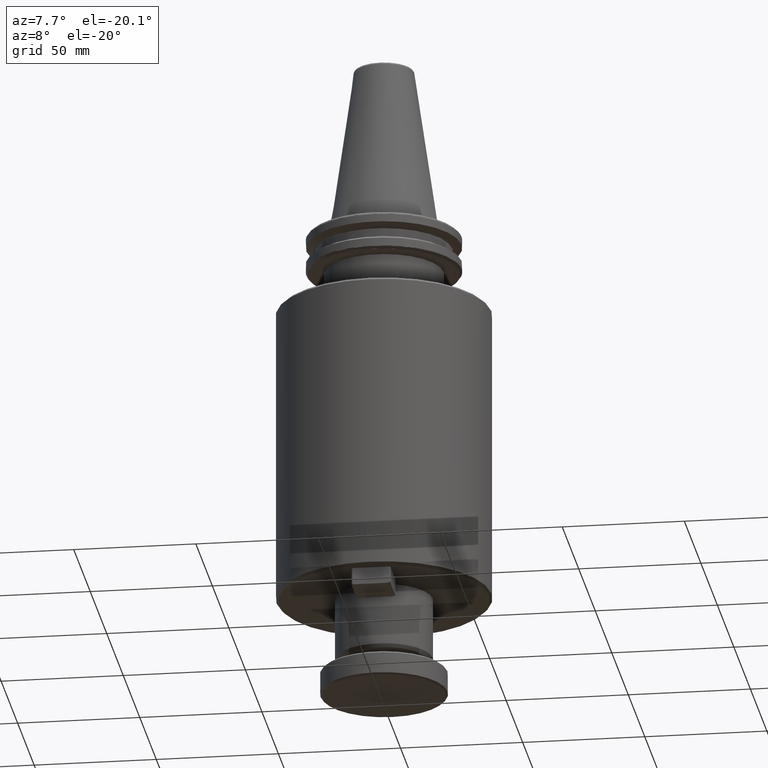
[diagram: clean part render]
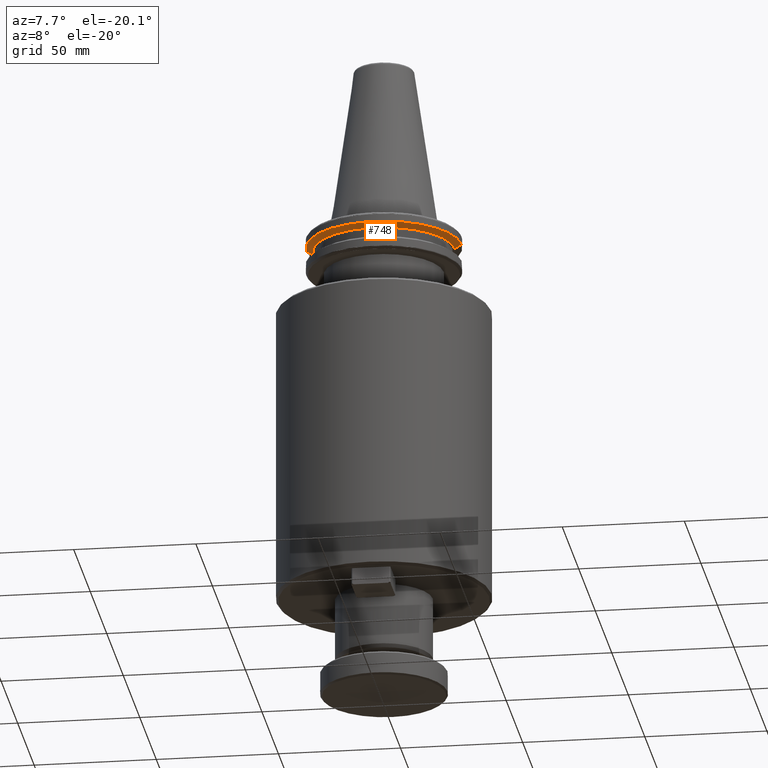
[diagram: same view with one face highlighted and labeled with its STEP entity id]
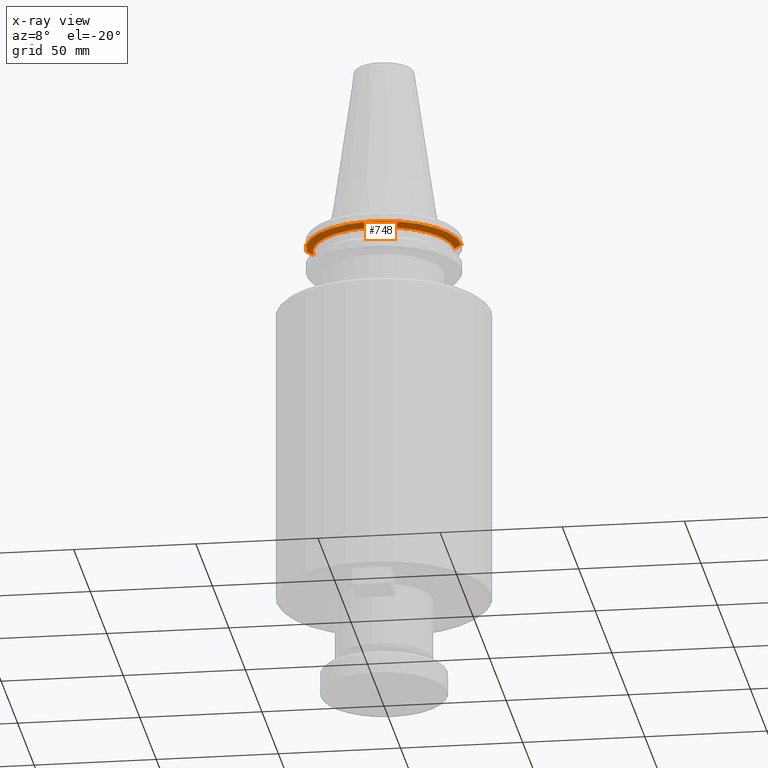
[diagram: x-ray of the same camera — body ghosted, the highlighted face saturated]
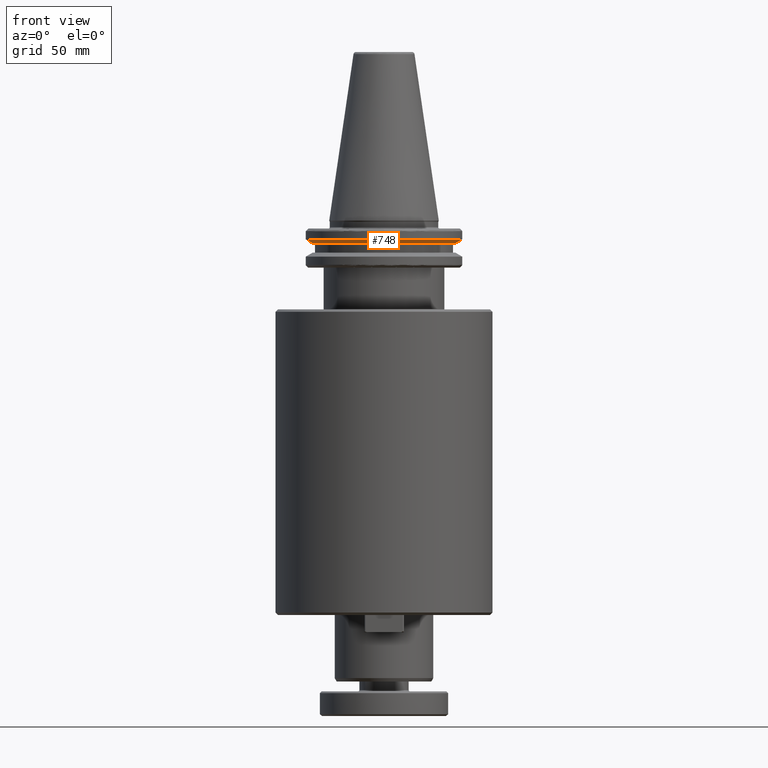
[diagram: same view with one face highlighted and labeled with its STEP entity id]
A machine part, auxiliary view. The second image highlights one B-rep face of the part: STEP entity #748.
The next image is the same camera in x-ray: the body ghosted, the highlighted face saturated — about 0% of this face is hidden behind the body in this view.
A second angle (front view) of the same face is appended — the face is thin or edge-on in the first view.
In plain terms, the highlighted conical surface has half-angle 60 deg.
Its self-contained STEP definition (entity closure, byte-faithful):
#137 = AXIS2_PLACEMENT_3D ( 'NONE', #929, #3248, #1270 ) ;
#172 = EDGE_LOOP ( 'NONE', ( #524, #1441, #634, #3550 ) ) ;
#295 = CARTESIAN_POINT ( 'NONE',  ( -31.75000000000000000, 3.888253587292846500E-015, -7.578163357943284800 ) ) ;
#390 = DIRECTION ( 'NONE',  ( 1.000000000000000000, 0.0000000000000000000, -5.463695987328526400E-017 ) ) ;
#399 = DIRECTION ( 'NONE',  ( -0.0000000000000000000, -0.0000000000000000000, -1.000000000000000000 ) ) ;
#401 = CARTESIAN_POINT ( 'NONE',  ( 0.0000000000000000000, 0.0000000000000000000, -7.578163357943284800 ) ) ;
#455 = CARTESIAN_POINT ( 'NONE',  ( -28.94089653438086500, 3.716245608910637900E-015, -9.199999999999999300 ) ) ;
#524 = ORIENTED_EDGE ( 'NONE', *, *, #839, .F. ) ;
#634 = ORIENTED_EDGE ( 'NONE', *, *, #733, .T. ) ;
#683 = VERTEX_POINT ( 'NONE', #3795 ) ;
#733 = EDGE_CURVE ( 'NONE', #683, #3641, #2505, .T. ) ;
#748 = ADVANCED_FACE ( 'NONE', ( #1877 ), #1810, .T. ) ;
#839 = EDGE_CURVE ( 'NONE', #2102, #3696, #1980, .T. ) ;
#868 = VECTOR ( 'NONE', #3642, 1000.000000000000000 ) ;
#929 = CARTESIAN_POINT ( 'NONE',  ( 0.0000000000000000000, 0.0000000000000000000, -9.199999999999999300 ) ) ;
#1270 = DIRECTION ( 'NONE',  ( 1.000000000000000000, 0.0000000000000000000, 0.0000000000000000000 ) ) ;
#1441 = ORIENTED_EDGE ( 'NONE', *, *, #2825, .T. ) ;
#1810 = CONICAL_SURFACE ( 'NONE', #3616, 31.75000000000000000, 1.047197551196598500 ) ;
#1877 = FACE_OUTER_BOUND ( 'NONE', #172, .T. ) ;
#1974 = CARTESIAN_POINT ( 'NONE',  ( 31.75000000000000000, 0.0000000000000000000, -7.578163357943286500 ) ) ;
#1980 = LINE ( 'NONE', #3097, #868 ) ;
#2009 = CARTESIAN_POINT ( 'NONE',  ( 31.75000000000000000, 0.0000000000000000000, -7.578163357943284800 ) ) ;
#2042 = DIRECTION ( 'NONE',  ( 1.000000000000000000, 0.0000000000000000000, 0.0000000000000000000 ) ) ;
#2102 = VERTEX_POINT ( 'NONE', #455 ) ;
#2154 = EDGE_CURVE ( 'NONE', #3641, #3696, #2291, .T. ) ;
#2291 = CIRCLE ( 'NONE', #3915, 31.75000000000000000 ) ;
#2505 = LINE ( 'NONE', #2009, #3204 ) ;
#2825 = EDGE_CURVE ( 'NONE', #2102, #683, #4214, .T. ) ;
#3097 = CARTESIAN_POINT ( 'NONE',  ( -31.75000000000000000, 3.888253587292846500E-015, -7.578163357943284800 ) ) ;
#3130 = CARTESIAN_POINT ( 'NONE',  ( 0.0000000000000000000, 0.0000000000000000000, -7.578163357943284800 ) ) ;
#3165 = DIRECTION ( 'NONE',  ( 0.0000000000000000000, -0.0000000000000000000, 1.000000000000000000 ) ) ;
#3204 = VECTOR ( 'NONE', #3434, 1000.000000000000000 ) ;
#3248 = DIRECTION ( 'NONE',  ( 0.0000000000000000000, -0.0000000000000000000, 1.000000000000000000 ) ) ;
#3434 = DIRECTION ( 'NONE',  ( 0.8660254037844390400, 0.0000000000000000000, 0.4999999999999993300 ) ) ;
#3550 = ORIENTED_EDGE ( 'NONE', *, *, #2154, .T. ) ;
#3616 = AXIS2_PLACEMENT_3D ( 'NONE', #3130, #3165, #2042 ) ;
#3641 = VERTEX_POINT ( 'NONE', #1974 ) ;
#3642 = DIRECTION ( 'NONE',  ( -0.8660254037844390400, 1.060575238724907400E-016, 0.4999999999999993300 ) ) ;
#3696 = VERTEX_POINT ( 'NONE', #295 ) ;
#3795 = CARTESIAN_POINT ( 'NONE',  ( 28.94089653438086500, 0.0000000000000000000, -9.199999999999999300 ) ) ;
#3915 = AXIS2_PLACEMENT_3D ( 'NONE', #401, #399, #390 ) ;
#4214 = CIRCLE ( 'NONE', #137, 28.94089653438086500 ) ;